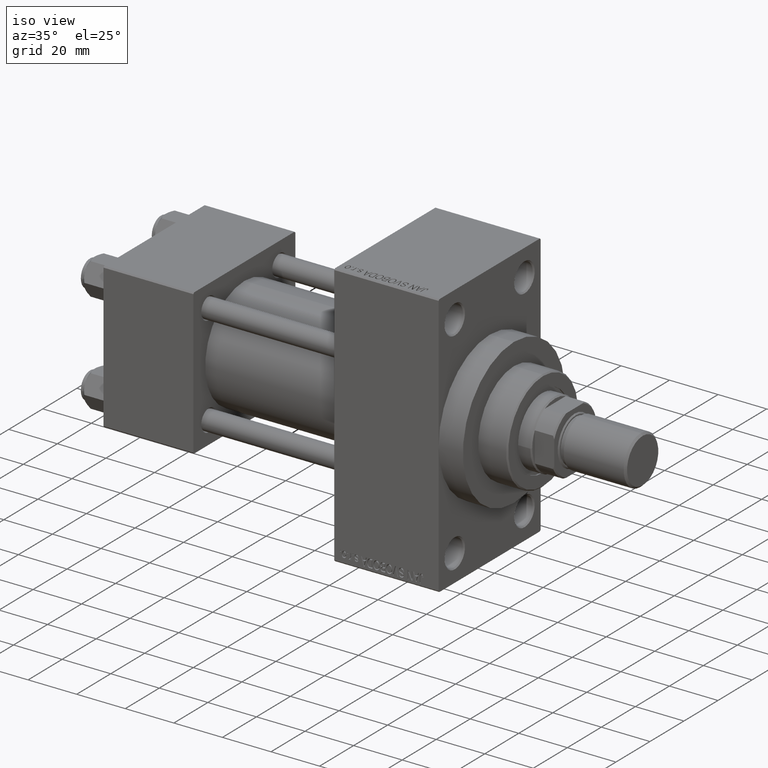
[diagram: clean part render]
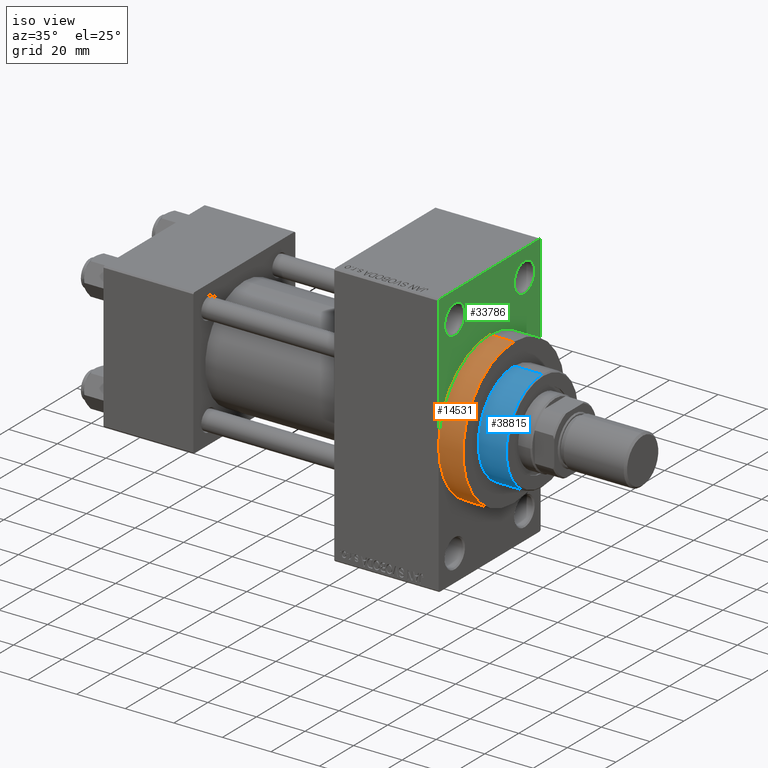
[diagram: same view with three faces highlighted in distinct colors, each labeled with its STEP entity id]
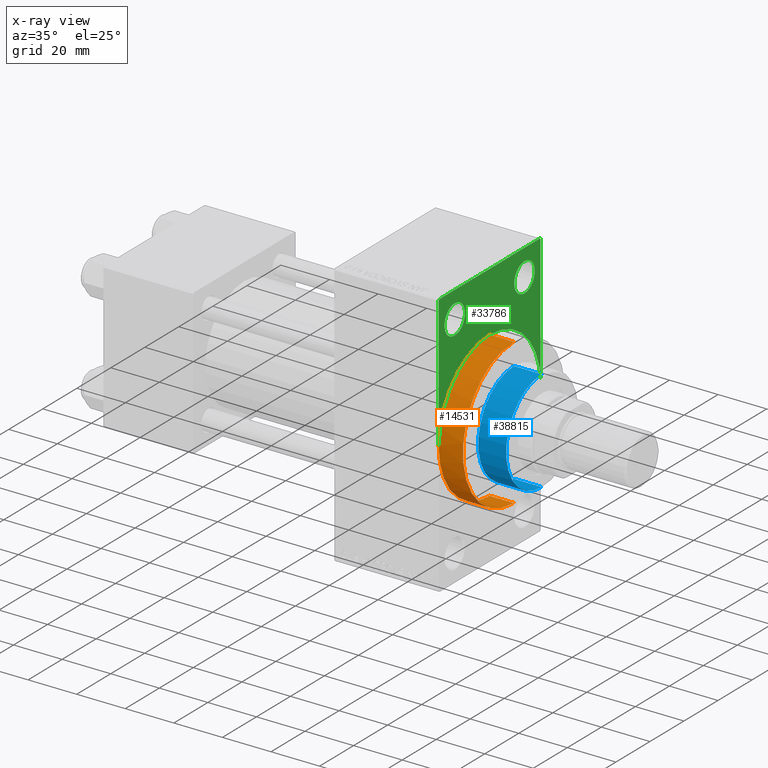
[diagram: x-ray of the same camera — body ghosted, the three highlighted faces saturated]
A machine part, iso view with three faces highlighted in distinct colors.
The next image is the same camera in x-ray (body ghosted, the three faces saturated) — at least one of them is partly hidden behind the body in this view.
Their STEP definitions:

[orange] entity #14531 — the highlighted cylindrical surface (partial cylindrical patch) has radius 30 mm, axis along (-1, -0, -0).
#987 = ORIENTED_EDGE ( 'NONE', *, *, #40314, .F. ) ;
#2826 = VERTEX_POINT ( 'NONE', #47622 ) ;
#3411 = VERTEX_POINT ( 'NONE', #36588 ) ;
#4815 = LINE ( 'NONE', #12310, #9418 ) ;
#5222 = DIRECTION ( 'NONE',  ( 0.000000000000000000, 0.000000000000000000, 1.000000000000000000 ) ) ;
#6420 = DIRECTION ( 'NONE',  ( 0.000000000000000000, 0.000000000000000000, -1.000000000000000000 ) ) ;
#7665 = DIRECTION ( 'NONE',  ( -1.000000000000000000, -0.000000000000000000, -0.000000000000000000 ) ) ;
#8340 = ORIENTED_EDGE ( 'NONE', *, *, #17644, .T. ) ;
#8365 = FACE_OUTER_BOUND ( 'NONE', #9153, .T. ) ;
#9046 = CARTESIAN_POINT ( 'NONE',  ( 138.0000000000000000, -30.00000000000000000, 0.000000000000000000 ) ) ;
#9153 = EDGE_LOOP ( 'NONE', ( #987, #44543, #10780, #8340, #33387 ) ) ;
#9418 = VECTOR ( 'NONE', #41496, 1000.000000000000000 ) ;
#9682 = DIRECTION ( 'NONE',  ( 1.000000000000000000, 0.000000000000000000, 0.000000000000000000 ) ) ;
#10512 = CARTESIAN_POINT ( 'NONE',  ( 148.0000000000000284, 0.000000000000000000, 0.000000000000000000 ) ) ;
#10780 = ORIENTED_EDGE ( 'NONE', *, *, #41402, .T. ) ;
#12310 = CARTESIAN_POINT ( 'NONE',  ( 148.0000000000000284, 0.000000000000000000, 30.00000000000000000 ) ) ;
#13428 = DIRECTION ( 'NONE',  ( 1.000000000000000000, 0.000000000000000000, 0.000000000000000000 ) ) ;
#14531 = ADVANCED_FACE ( 'NONE', ( #8365 ), #23083, .T. ) ;
#14870 = CIRCLE ( 'NONE', #41847, 30.00000000000000000 ) ;
#15136 = LINE ( 'NONE', #22388, #34833 ) ;
#17644 = EDGE_CURVE ( 'NONE', #3411, #22989, #43596, .T. ) ;
#21241 = DIRECTION ( 'NONE',  ( 0.000000000000000000, 0.000000000000000000, -1.000000000000000000 ) ) ;
#22388 = CARTESIAN_POINT ( 'NONE',  ( 148.0000000000000284, 3.673940397442059178E-15, -30.00000000000000000 ) ) ;
#22989 = VERTEX_POINT ( 'NONE', #9046 ) ;
#23083 = CYLINDRICAL_SURFACE ( 'NONE', #30529, 30.00000000000000000 ) ;
#23272 = DIRECTION ( 'NONE',  ( 1.000000000000000000, 0.000000000000000000, 0.000000000000000000 ) ) ;
#27221 = CIRCLE ( 'NONE', #31074, 30.00000000000000000 ) ;
#28363 = CARTESIAN_POINT ( 'NONE',  ( 148.0000000000000284, 3.673940397442059178E-15, -30.00000000000000000 ) ) ;
#28995 = VERTEX_POINT ( 'NONE', #28363 ) ;
#30529 = AXIS2_PLACEMENT_3D ( 'NONE', #34424, #37798, #5222 ) ;
#31074 = AXIS2_PLACEMENT_3D ( 'NONE', #46815, #9682, #21241 ) ;
#33387 = ORIENTED_EDGE ( 'NONE', *, *, #43864, .T. ) ;
#34424 = CARTESIAN_POINT ( 'NONE',  ( 148.0000000000000284, 0.000000000000000000, 0.000000000000000000 ) ) ;
#34833 = VECTOR ( 'NONE', #7665, 1000.000000000000000 ) ;
#34919 = VERTEX_POINT ( 'NONE', #42009 ) ;
#36588 = CARTESIAN_POINT ( 'NONE',  ( 138.0000000000000000, 0.000000000000000000, 30.00000000000000000 ) ) ;
#37798 = DIRECTION ( 'NONE',  ( -1.000000000000000000, -0.000000000000000000, -0.000000000000000000 ) ) ;
#40314 = EDGE_CURVE ( 'NONE', #28995, #34919, #15136, .T. ) ;
#41402 = EDGE_CURVE ( 'NONE', #2826, #3411, #4815, .T. ) ;
#41496 = DIRECTION ( 'NONE',  ( -1.000000000000000000, -0.000000000000000000, -0.000000000000000000 ) ) ;
#41847 = AXIS2_PLACEMENT_3D ( 'NONE', #10512, #13428, #6420 ) ;
#42009 = CARTESIAN_POINT ( 'NONE',  ( 138.0000000000000000, 3.673940397442059178E-15, -30.00000000000000000 ) ) ;
#42048 = AXIS2_PLACEMENT_3D ( 'NONE', #44744, #23272, #44266 ) ;
#43596 = CIRCLE ( 'NONE', #42048, 30.00000000000000000 ) ;
#43864 = EDGE_CURVE ( 'NONE', #22989, #34919, #27221, .T. ) ;
#44266 = DIRECTION ( 'NONE',  ( 0.000000000000000000, 0.000000000000000000, -1.000000000000000000 ) ) ;
#44543 = ORIENTED_EDGE ( 'NONE', *, *, #47397, .F. ) ;
#44744 = CARTESIAN_POINT ( 'NONE',  ( 138.0000000000000000, 0.000000000000000000, 0.000000000000000000 ) ) ;
#46815 = CARTESIAN_POINT ( 'NONE',  ( 138.0000000000000000, 0.000000000000000000, 0.000000000000000000 ) ) ;
#47397 = EDGE_CURVE ( 'NONE', #2826, #28995, #14870, .T. ) ;
#47622 = CARTESIAN_POINT ( 'NONE',  ( 148.0000000000000284, 0.000000000000000000, 30.00000000000000000 ) ) ;

[blue] entity #38815 — the highlighted cylindrical surface (partial cylindrical patch) has radius 21 mm, axis along (-1, 0, 0).
#107 = VECTOR ( 'NONE', #15954, 1000.000000000000000 ) ;
#1240 = CARTESIAN_POINT ( 'NONE',  ( -21.00000000000000000, 0.000000000000000000, 55.26000000000000512 ) ) ;
#1531 = CARTESIAN_POINT ( 'NONE',  ( 21.00000000000000000, 2.571758278209441661E-15, 43.25999999999999801 ) ) ;
#2050 = VERTEX_POINT ( 'NONE', #3959 ) ;
#3315 = DIRECTION ( 'NONE',  ( -1.000000000000000000, 0.000000000000000000, 0.000000000000000000 ) ) ;
#3959 = CARTESIAN_POINT ( 'NONE',  ( -21.00000000000000000, 0.000000000000000000, 43.25999999999999801 ) ) ;
#4577 = CARTESIAN_POINT ( 'NONE',  ( 0.000000000000000000, 0.000000000000000000, 54.75999999999999091 ) ) ;
#5582 = CARTESIAN_POINT ( 'NONE',  ( 21.00000000000000000, 2.571758278209441661E-15, 54.75999999999999091 ) ) ;
#7007 = EDGE_CURVE ( 'NONE', #33977, #2050, #23299, .T. ) ;
#7180 = FACE_OUTER_BOUND ( 'NONE', #29173, .T. ) ;
#7410 = DIRECTION ( 'NONE',  ( 0.000000000000000000, 0.000000000000000000, 1.000000000000000000 ) ) ;
#9650 = DIRECTION ( 'NONE',  ( 1.000000000000000000, 0.000000000000000000, 0.000000000000000000 ) ) ;
#10518 = EDGE_CURVE ( 'NONE', #43821, #38304, #20365, .T. ) ;
#10957 = AXIS2_PLACEMENT_3D ( 'NONE', #15118, #7410, #47704 ) ;
#14615 = ORIENTED_EDGE ( 'NONE', *, *, #10518, .T. ) ;
#15118 = CARTESIAN_POINT ( 'NONE',  ( 0.000000000000000000, 0.000000000000000000, 43.25999999999999801 ) ) ;
#15674 = DIRECTION ( 'NONE',  ( 0.000000000000000000, 0.000000000000000000, -1.000000000000000000 ) ) ;
#15954 = DIRECTION ( 'NONE',  ( -0.000000000000000000, -0.000000000000000000, -1.000000000000000000 ) ) ;
#18759 = CYLINDRICAL_SURFACE ( 'NONE', #28632, 21.00000000000000000 ) ;
#20365 = CIRCLE ( 'NONE', #34216, 21.00000000000000000 ) ;
#22937 = ORIENTED_EDGE ( 'NONE', *, *, #39249, .F. ) ;
#23299 = CIRCLE ( 'NONE', #10957, 21.00000000000000000 ) ;
#25051 = CARTESIAN_POINT ( 'NONE',  ( 0.000000000000000000, 0.000000000000000000, 55.26000000000000512 ) ) ;
#27115 = ORIENTED_EDGE ( 'NONE', *, *, #7007, .T. ) ;
#28632 = AXIS2_PLACEMENT_3D ( 'NONE', #25051, #43855, #3315 ) ;
#29173 = EDGE_LOOP ( 'NONE', ( #14615, #44239, #27115, #22937 ) ) ;
#30936 = CARTESIAN_POINT ( 'NONE',  ( 21.00000000000000000, 2.571758278209441661E-15, 55.26000000000000512 ) ) ;
#31771 = VECTOR ( 'NONE', #45651, 1000.000000000000000 ) ;
#33977 = VERTEX_POINT ( 'NONE', #1531 ) ;
#34216 = AXIS2_PLACEMENT_3D ( 'NONE', #4577, #15674, #9650 ) ;
#34303 = LINE ( 'NONE', #1240, #107 ) ;
#35721 = CARTESIAN_POINT ( 'NONE',  ( -21.00000000000000000, 0.000000000000000000, 54.75999999999999091 ) ) ;
#38304 = VERTEX_POINT ( 'NONE', #5582 ) ;
#38815 = ADVANCED_FACE ( 'NONE', ( #7180 ), #18759, .T. ) ;
#39249 = EDGE_CURVE ( 'NONE', #43821, #2050, #34303, .T. ) ;
#41132 = EDGE_CURVE ( 'NONE', #38304, #33977, #46362, .T. ) ;
#43821 = VERTEX_POINT ( 'NONE', #35721 ) ;
#43855 = DIRECTION ( 'NONE',  ( -0.000000000000000000, -0.000000000000000000, -1.000000000000000000 ) ) ;
#44239 = ORIENTED_EDGE ( 'NONE', *, *, #41132, .T. ) ;
#45651 = DIRECTION ( 'NONE',  ( -0.000000000000000000, -0.000000000000000000, -1.000000000000000000 ) ) ;
#46362 = LINE ( 'NONE', #30936, #31771 ) ;
#47704 = DIRECTION ( 'NONE',  ( 1.000000000000000000, 0.000000000000000000, 0.000000000000000000 ) ) ;

[green] entity #33786 — the highlighted planar face has unit normal (-1, 0, 0).
#109 = CARTESIAN_POINT ( 'NONE',  ( 138.0000000000000000, 0.000000000000000000, 0.000000000000000000 ) ) ;
#571 = VERTEX_POINT ( 'NONE', #36944 ) ;
#594 = FACE_BOUND ( 'NONE', #34411, .T. ) ;
#1445 = AXIS2_PLACEMENT_3D ( 'NONE', #109, #8069, #25689 ) ;
#1691 = CARTESIAN_POINT ( 'NONE',  ( 138.0000000000000000, -20.50000000000000000, 43.50000000000000000 ) ) ;
#1912 = EDGE_CURVE ( 'NONE', #18604, #39399, #2313, .T. ) ;
#1941 = DIRECTION ( 'NONE',  ( 0.000000000000000000, 0.000000000000000000, 1.000000000000000000 ) ) ;
#2313 = LINE ( 'NONE', #36071, #30153 ) ;
#2414 = CARTESIAN_POINT ( 'NONE',  ( 138.0000000000000000, -20.50000000000000000, 43.50000000000000000 ) ) ;
#2899 = CARTESIAN_POINT ( 'NONE',  ( 138.0000000000000000, 30.00000000000000000, 0.000000000000000000 ) ) ;
#3010 = DIRECTION ( 'NONE',  ( 0.000000000000000000, 0.000000000000000000, -1.000000000000000000 ) ) ;
#3357 = CARTESIAN_POINT ( 'NONE',  ( 138.0000000000000000, 0.000000000000000000, 0.000000000000000000 ) ) ;
#3411 = VERTEX_POINT ( 'NONE', #36588 ) ;
#4304 = EDGE_CURVE ( 'NONE', #39399, #3411, #45685, .T. ) ;
#4689 = CIRCLE ( 'NONE', #17759, 6.000000000000088818 ) ;
#4980 = LINE ( 'NONE', #16070, #22875 ) ;
#4986 = CARTESIAN_POINT ( 'NONE',  ( 138.0000000000000000, 20.50000000000000000, 43.50000000000000000 ) ) ;
#5071 = DIRECTION ( 'NONE',  ( 0.000000000000000000, 0.000000000000000000, 1.000000000000000000 ) ) ;
#5782 = CARTESIAN_POINT ( 'NONE',  ( 138.0000000000000000, -30.00000000000000000, 53.99999999999997158 ) ) ;
#6287 = CARTESIAN_POINT ( 'NONE',  ( 138.0000000000000000, 29.50000000000002132, 54.49999999999999289 ) ) ;
#7536 = CARTESIAN_POINT ( 'NONE',  ( 138.0000000000000000, -20.50000000000000000, 49.50000000000008527 ) ) ;
#8069 = DIRECTION ( 'NONE',  ( -1.000000000000000000, 0.000000000000000000, -0.000000000000000000 ) ) ;
#9046 = CARTESIAN_POINT ( 'NONE',  ( 138.0000000000000000, -30.00000000000000000, 0.000000000000000000 ) ) ;
#9262 = CARTESIAN_POINT ( 'NONE',  ( 138.0000000000000000, 29.99999999999999645, 53.99999999999999289 ) ) ;
#10868 = LINE ( 'NONE', #28506, #14313 ) ;
#11219 = PLANE ( 'NONE',  #1445 ) ;
#11849 = ORIENTED_EDGE ( 'NONE', *, *, #24330, .T. ) ;
#12788 = ORIENTED_EDGE ( 'NONE', *, *, #18972, .T. ) ;
#12797 = DIRECTION ( 'NONE',  ( -1.000000000000000000, 0.000000000000000000, -0.000000000000000000 ) ) ;
#13774 = AXIS2_PLACEMENT_3D ( 'NONE', #35010, #41525, #31387 ) ;
#14313 = VECTOR ( 'NONE', #25341, 1000.000000000000114 ) ;
#14454 = DIRECTION ( 'NONE',  ( 0.000000000000000000, 0.000000000000000000, -1.000000000000000000 ) ) ;
#16070 = CARTESIAN_POINT ( 'NONE',  ( 138.0000000000000000, 29.99999999999999645, 54.49999999999999289 ) ) ;
#17280 = EDGE_CURVE ( 'NONE', #34821, #571, #4980, .T. ) ;
#17644 = EDGE_CURVE ( 'NONE', #3411, #22989, #43596, .T. ) ;
#17746 = ORIENTED_EDGE ( 'NONE', *, *, #17644, .F. ) ;
#17759 = AXIS2_PLACEMENT_3D ( 'NONE', #4986, #18750, #33945 ) ;
#18327 = VECTOR ( 'NONE', #19070, 1000.000000000000000 ) ;
#18604 = VERTEX_POINT ( 'NONE', #9262 ) ;
#18750 = DIRECTION ( 'NONE',  ( -1.000000000000000000, 0.000000000000000000, -0.000000000000000000 ) ) ;
#18972 = EDGE_CURVE ( 'NONE', #571, #41346, #10868, .T. ) ;
#19070 = DIRECTION ( 'NONE',  ( 0.000000000000000000, 0.000000000000000000, -1.000000000000000000 ) ) ;
#21005 = DIRECTION ( 'NONE',  ( 0.000000000000000000, -0.7071067811865279218, 0.7071067811865671127 ) ) ;
#21452 = AXIS2_PLACEMENT_3D ( 'NONE', #1691, #12797, #5071 ) ;
#22875 = VECTOR ( 'NONE', #44319, 1000.000000000000000 ) ;
#22989 = VERTEX_POINT ( 'NONE', #9046 ) ;
#23011 = CIRCLE ( 'NONE', #21452, 6.000000000000088818 ) ;
#23272 = DIRECTION ( 'NONE',  ( 1.000000000000000000, 0.000000000000000000, 0.000000000000000000 ) ) ;
#24330 = EDGE_CURVE ( 'NONE', #34798, #33929, #23011, .T. ) ;
#24371 = CARTESIAN_POINT ( 'NONE',  ( 138.0000000000000000, 20.50000000000000000, 49.50000000000008527 ) ) ;
#25266 = EDGE_CURVE ( 'NONE', #46679, #46524, #43833, .T. ) ;
#25341 = DIRECTION ( 'NONE',  ( -0.000000000000000000, -0.7071067811865451302, -0.7071067811865500152 ) ) ;
#25689 = DIRECTION ( 'NONE',  ( -0.000000000000000000, 0.000000000000000000, 1.000000000000000000 ) ) ;
#27750 = EDGE_CURVE ( 'NONE', #41346, #22989, #38122, .T. ) ;
#28506 = CARTESIAN_POINT ( 'NONE',  ( 138.0000000000000000, -30.00000000000000000, 53.99999999999997158 ) ) ;
#28938 = ORIENTED_EDGE ( 'NONE', *, *, #27750, .T. ) ;
#29498 = CARTESIAN_POINT ( 'NONE',  ( 138.0000000000000000, 29.50000000000002132, 54.49999999999999289 ) ) ;
#30153 = VECTOR ( 'NONE', #3010, 1000.000000000000000 ) ;
#30212 = EDGE_CURVE ( 'NONE', #18604, #34821, #39583, .T. ) ;
#30772 = VECTOR ( 'NONE', #21005, 1000.000000000000000 ) ;
#31387 = DIRECTION ( 'NONE',  ( 0.000000000000000000, 0.000000000000000000, 1.000000000000000000 ) ) ;
#31811 = AXIS2_PLACEMENT_3D ( 'NONE', #3357, #32799, #14454 ) ;
#32799 = DIRECTION ( 'NONE',  ( 1.000000000000000000, 0.000000000000000000, 0.000000000000000000 ) ) ;
#33786 = ADVANCED_FACE ( 'NONE', ( #594, #33888, #44018 ), #11219, .F. ) ;
#33888 = FACE_BOUND ( 'NONE', #34808, .T. ) ;
#33929 = VERTEX_POINT ( 'NONE', #45458 ) ;
#33945 = DIRECTION ( 'NONE',  ( 0.000000000000000000, 0.000000000000000000, 1.000000000000000000 ) ) ;
#34411 = EDGE_LOOP ( 'NONE', ( #45848, #11849 ) ) ;
#34798 = VERTEX_POINT ( 'NONE', #7536 ) ;
#34808 = EDGE_LOOP ( 'NONE', ( #43122, #42269 ) ) ;
#34821 = VERTEX_POINT ( 'NONE', #29498 ) ;
#35010 = CARTESIAN_POINT ( 'NONE',  ( 138.0000000000000000, 20.50000000000000000, 43.50000000000000000 ) ) ;
#35240 = DIRECTION ( 'NONE',  ( -1.000000000000000000, 0.000000000000000000, -0.000000000000000000 ) ) ;
#36071 = CARTESIAN_POINT ( 'NONE',  ( 138.0000000000000000, 29.99999999999999645, 54.49999999999999289 ) ) ;
#36588 = CARTESIAN_POINT ( 'NONE',  ( 138.0000000000000000, 0.000000000000000000, 30.00000000000000000 ) ) ;
#36636 = ORIENTED_EDGE ( 'NONE', *, *, #30212, .T. ) ;
#36688 = EDGE_CURVE ( 'NONE', #33929, #34798, #39353, .T. ) ;
#36944 = CARTESIAN_POINT ( 'NONE',  ( 138.0000000000000000, -29.49999999999997513, 54.50000000000000000 ) ) ;
#38122 = LINE ( 'NONE', #41028, #18327 ) ;
#38123 = EDGE_CURVE ( 'NONE', #46524, #46679, #4689, .T. ) ;
#39347 = EDGE_LOOP ( 'NONE', ( #40268, #12788, #28938, #17746, #41811, #42494, #36636 ) ) ;
#39353 = CIRCLE ( 'NONE', #46268, 6.000000000000088818 ) ;
#39399 = VERTEX_POINT ( 'NONE', #2899 ) ;
#39583 = LINE ( 'NONE', #6287, #30772 ) ;
#40268 = ORIENTED_EDGE ( 'NONE', *, *, #17280, .T. ) ;
#41028 = CARTESIAN_POINT ( 'NONE',  ( 138.0000000000000000, -30.00000000000000000, 54.50000000000000000 ) ) ;
#41346 = VERTEX_POINT ( 'NONE', #5782 ) ;
#41525 = DIRECTION ( 'NONE',  ( -1.000000000000000000, 0.000000000000000000, -0.000000000000000000 ) ) ;
#41811 = ORIENTED_EDGE ( 'NONE', *, *, #4304, .F. ) ;
#42048 = AXIS2_PLACEMENT_3D ( 'NONE', #44744, #23272, #44266 ) ;
#42269 = ORIENTED_EDGE ( 'NONE', *, *, #38123, .T. ) ;
#42494 = ORIENTED_EDGE ( 'NONE', *, *, #1912, .F. ) ;
#43122 = ORIENTED_EDGE ( 'NONE', *, *, #25266, .T. ) ;
#43596 = CIRCLE ( 'NONE', #42048, 30.00000000000000000 ) ;
#43833 = CIRCLE ( 'NONE', #13774, 6.000000000000088818 ) ;
#44018 = FACE_OUTER_BOUND ( 'NONE', #39347, .T. ) ;
#44266 = DIRECTION ( 'NONE',  ( 0.000000000000000000, 0.000000000000000000, -1.000000000000000000 ) ) ;
#44319 = DIRECTION ( 'NONE',  ( 0.000000000000000000, -1.000000000000000000, 1.156482317317871478E-16 ) ) ;
#44744 = CARTESIAN_POINT ( 'NONE',  ( 138.0000000000000000, 0.000000000000000000, 0.000000000000000000 ) ) ;
#45458 = CARTESIAN_POINT ( 'NONE',  ( 138.0000000000000000, -20.50000000000000000, 37.49999999999990763 ) ) ;
#45685 = CIRCLE ( 'NONE', #31811, 30.00000000000000000 ) ;
#45848 = ORIENTED_EDGE ( 'NONE', *, *, #36688, .T. ) ;
#46268 = AXIS2_PLACEMENT_3D ( 'NONE', #2414, #35240, #1941 ) ;
#46524 = VERTEX_POINT ( 'NONE', #24371 ) ;
#46679 = VERTEX_POINT ( 'NONE', #47256 ) ;
#47256 = CARTESIAN_POINT ( 'NONE',  ( 138.0000000000000000, 20.50000000000000000, 37.49999999999990763 ) ) ;